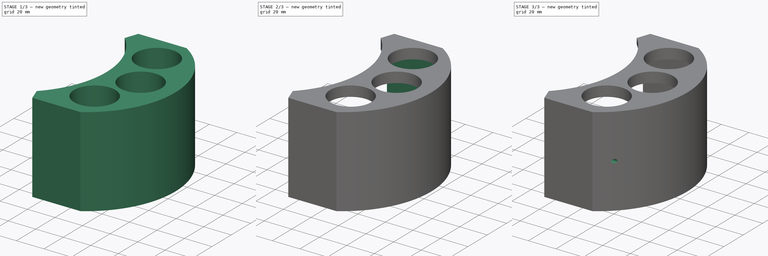
[diagram: build sequence overview — one tinted view per stage of 3, left to right]
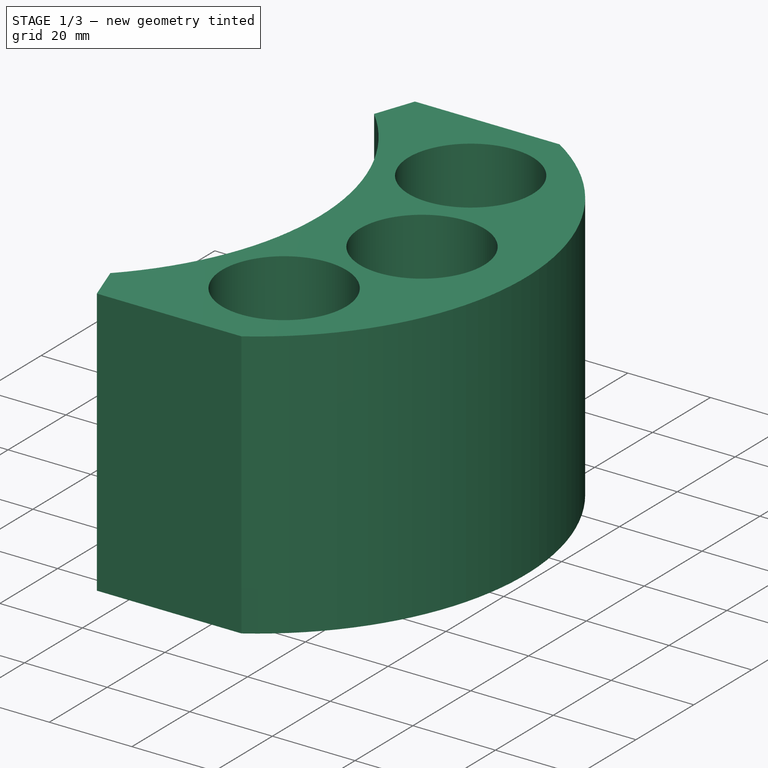
[diagram: stage 1 of 3 — iso view after this stage's code; geometry added in this stage tinted green]
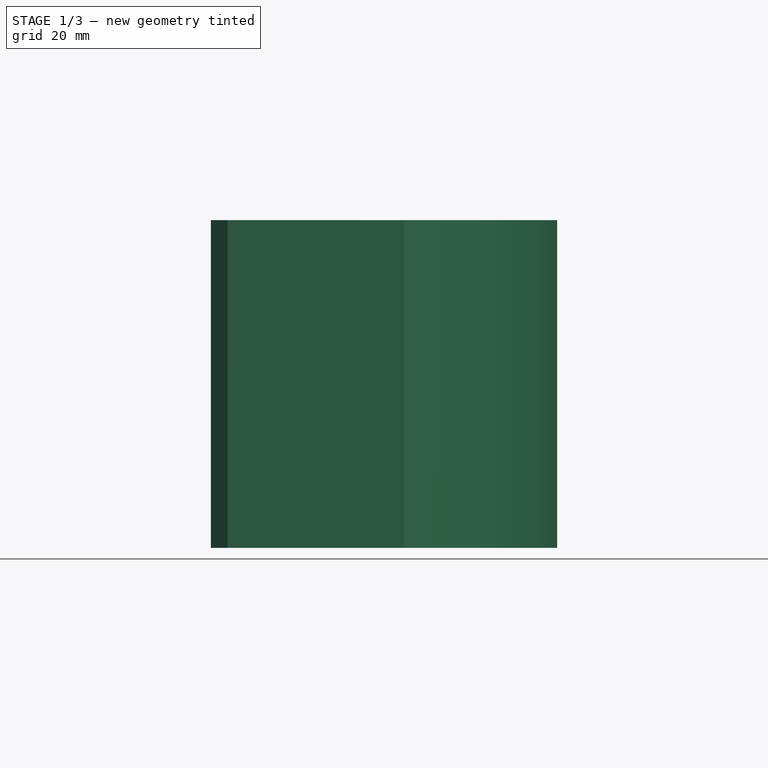
[diagram: stage 1 of 3 — front view after this stage's code; geometry added in this stage tinted green]
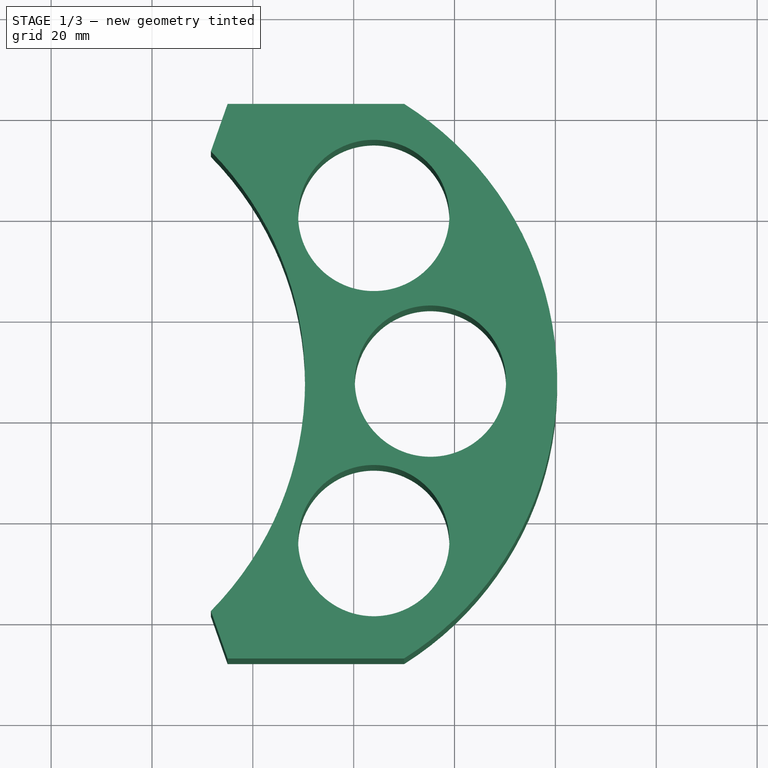
[diagram: stage 1 of 3 — top view after this stage's code; geometry added in this stage tinted green]
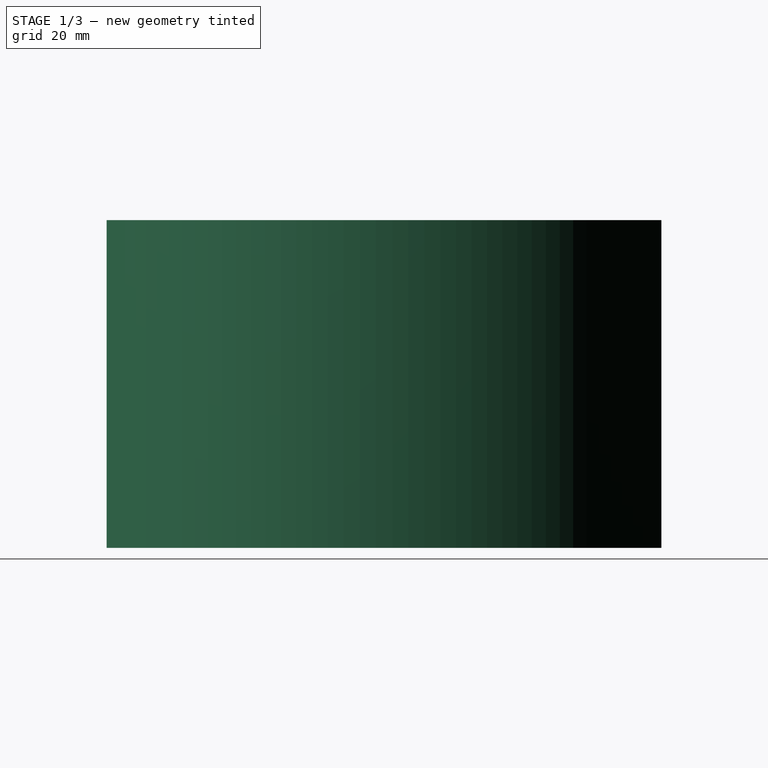
[diagram: stage 1 of 3 — right view after this stage's code; geometry added in this stage tinted green]
FCSTD DOCUMENT  (FreeCAD 0.19R24267 +148 (Git))
Label: Ex12
License: All rights reserved
LicenseURL: http://en.wikipedia.org/wiki/All_rights_reserved
objects: Sketcher::SketchObject×4, PartDesign::Pocket×2, PartDesign::Pad×1, PartDesign::Chamfer×1, PartDesign::Fillet×1, PartDesign::Point×1, PartDesign::Body×1
note: 16 computed .brp shape members not serialized (recipe doc carries the construction recipe); baked Part::Feature solids carry a one-line shape summary decoded from their .brp

FEATURE [Sketcher::SketchObject] Sketch
  FullyConstrained = false
  MapMode = 5
  Support = -> [XY_Plane]
  sketch-geometry (7):
    g0: ArcOfCircle CenterX=-34.641 CenterY=-32.863 CenterZ=0 NormalX=0 NormalY=0 NormalZ=1 AngleXU=0 Radius=65 StartAngle=5.27446 EndAngle=7.29191
    g1: ArcOfCircle CenterX=15.359 CenterY=-32.863 CenterZ=0 NormalX=0 NormalY=0 NormalZ=1 AngleXU=0 Radius=65 StartAngle=5.27446 EndAngle=7.29191
    g2: LineSegment StartX=50 StartY=22.137 StartZ=0 EndX=-2.13e-14 EndY=22.137 EndZ=0
    g3: LineSegment StartX=0 StartY=-87.863 StartZ=0 EndX=50 EndY=-87.863 EndZ=0
    g4: Circle CenterX=55.2191 CenterY=-32.863 CenterZ=0 NormalX=0 NormalY=0 NormalZ=1 AngleXU=0 Radius=15
    g5: Circle CenterX=43.9825 CenterY=0 CenterZ=0 NormalX=0 NormalY=0 NormalZ=1 AngleXU=0 Radius=15
    g6: Circle CenterX=43.9825 CenterY=-64.492 CenterZ=0 NormalX=0 NormalY=0 NormalZ=1 AngleXU=0 Radius=15
  constraints (19):
    c: PointOnObject(g0,g-2)
    c: PointOnObject(g0,g-2)
    c: Horizontal(g1,g0)
    c: Horizontal(g0,g1)
    c: Coincident(g2,g1)
    c: Coincident(g2,g0)
    c: Coincident(g3,g0)
    c: Coincident(g3,g1)
    c: Vertical(g1,g1)
    c: DistanceY(g0,g0) = 110
    c: DistanceX(g0,g1) = 50
    c: Radius(g1) = 65
    c: Radius(g0) = 65
    c: Horizontal(g4,g1)
    c: Diameter(g4) = 30
    c: Equal(g4,g5) = 30
    c: PointOnObject(g5,g-1)
    c: Equal(g4,g6) = 30
    c: Vertical(g5,g6)
FEATURE [PartDesign::Pad] Pad
  Direction = (1,1,1)
  Length = 65
  Length2 = 100
  Midplane = true
  Profile = -> Sketch
  Type = 0
FEATURE [Sketcher::SketchObject] Sketch001
  FullyConstrained = false
  MapMode = 5
  Placement = pos=(0,0,0) rot=(0.57735,0.57735,0.57735;2.0944rad)
  Support = -> [YZ_Plane]
  sketch-geometry (4):
    g0: LineSegment StartX=17.5178 StartY=23.0871 StartZ=0 EndX=-82.4822 EndY=23.0871 EndZ=0
    g1: LineSegment StartX=-82.4822 StartY=23.0871 StartZ=0 EndX=-82.4822 EndY=-26.9129 EndZ=0
    g2: LineSegment StartX=-82.4822 StartY=-26.9129 StartZ=0 EndX=17.5178 EndY=-26.9129 EndZ=0
    g3: LineSegment StartX=17.5178 StartY=-26.9129 StartZ=0 EndX=17.5178 EndY=23.0871 EndZ=0
  constraints (10):
    c: Coincident(g0,g1)
    c: Coincident(g1,g2)
    c: Coincident(g2,g3)
    c: Coincident(g3,g0)
    c: Horizontal(g0)
    c: Horizontal(g2)
    c: Vertical(g1)
    c: Vertical(g3)
    c: DistanceY(g1,g1) = 50
    c: DistanceX(g0,g0) = 100
FEATURE [Sketcher::SketchObject] Sketch002
  FullyConstrained = false
  MapMode = 5
  Support = -> [XY_Plane]
  sketch-geometry (4):
    g0: ArcOfCircle CenterX=12.3243 CenterY=-32.9632 CenterZ=0 NormalX=0 NormalY=0 NormalZ=1 AngleXU=0 Radius=63.6185 StartAngle=5.37898 EndAngle=7.18739
    g1: LineSegment StartX=51.6602 StartY=17.0368 StartZ=0 EndX=0 EndY=17.0368 EndZ=0
    g2: LineSegment StartX=51.6602 StartY=-82.9632 StartZ=0 EndX=0 EndY=-82.9632 EndZ=0
    g3: LineSegment StartX=0 StartY=17.0368 StartZ=0 EndX=0 EndY=-82.9632 EndZ=0
  constraints (10):
    c: Coincident(g1,g0)
    c: PointOnObject(g1,g-2)
    c: Horizontal(g1)
    c: Coincident(g2,g0)
    c: PointOnObject(g2,g-2)
    c: Horizontal(g2)
    c: Coincident(g3,g1)
    c: Coincident(g3,g2)
    c: DistanceY(g3,g3) = 100
    c: Vertical(g0,g0)
FEATURE [Sketcher::SketchObject] Sketch003
  FullyConstrained = false
  MapMode = 5
  Placement = pos=(0,0,0) rot=(0.57735,0.57735,0.57735;2.0944rad)
  Support = -> [YZ_Plane]
  sketch-geometry (2):
    g0: Circle CenterX=-79.8652 CenterY=0 CenterZ=0 NormalX=0 NormalY=0 NormalZ=1 AngleXU=0 Radius=1.34467
    g1: Circle CenterX=13.5801 CenterY=-0.015654 CenterZ=0 NormalX=0 NormalY=0 NormalZ=1 AngleXU=0 Radius=1.34467
FEATURE [PartDesign::Chamfer] Chamfer
  Angle = 45
  Base = -> Pad [Edge1,Edge2]
  BaseFeature = -> Pad
  ChamferType = 0
  FlipDirection = false
  Size = 15
  Size2 = 1
  SupportTransform = false
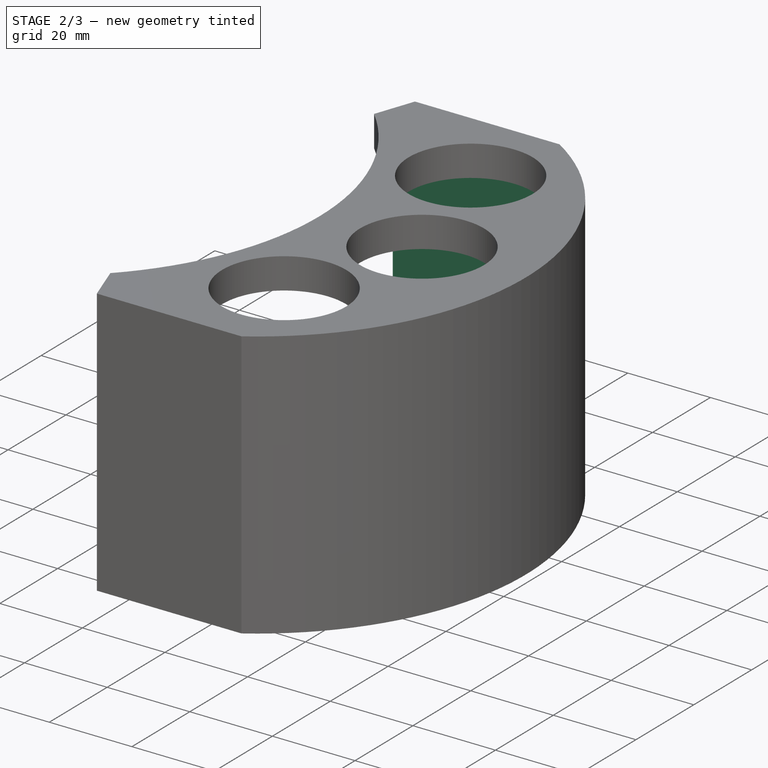
[diagram: stage 2 of 3 — iso view after this stage's code; geometry added in this stage tinted green]
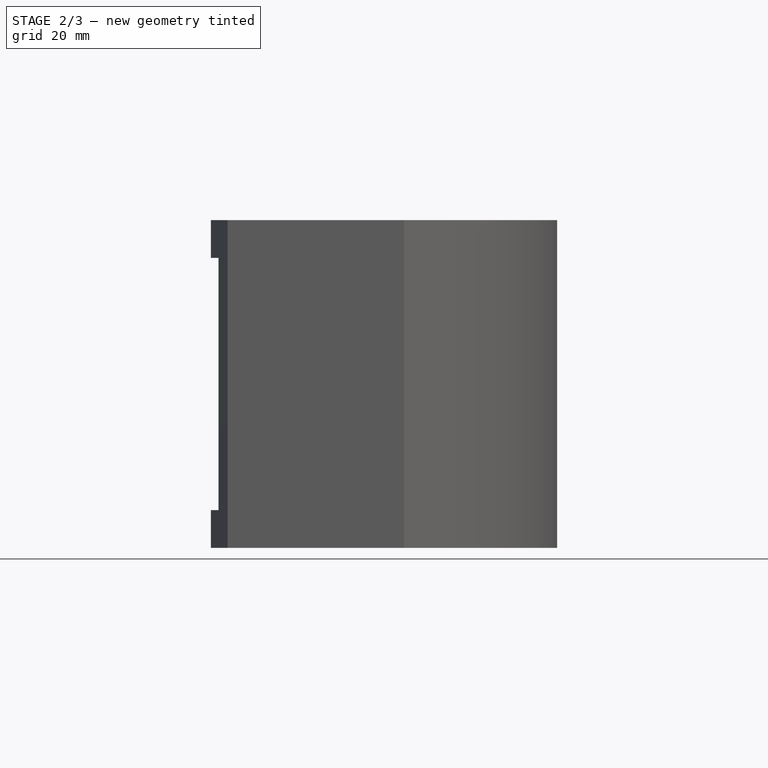
[diagram: stage 2 of 3 — front view after this stage's code; geometry added in this stage tinted green]
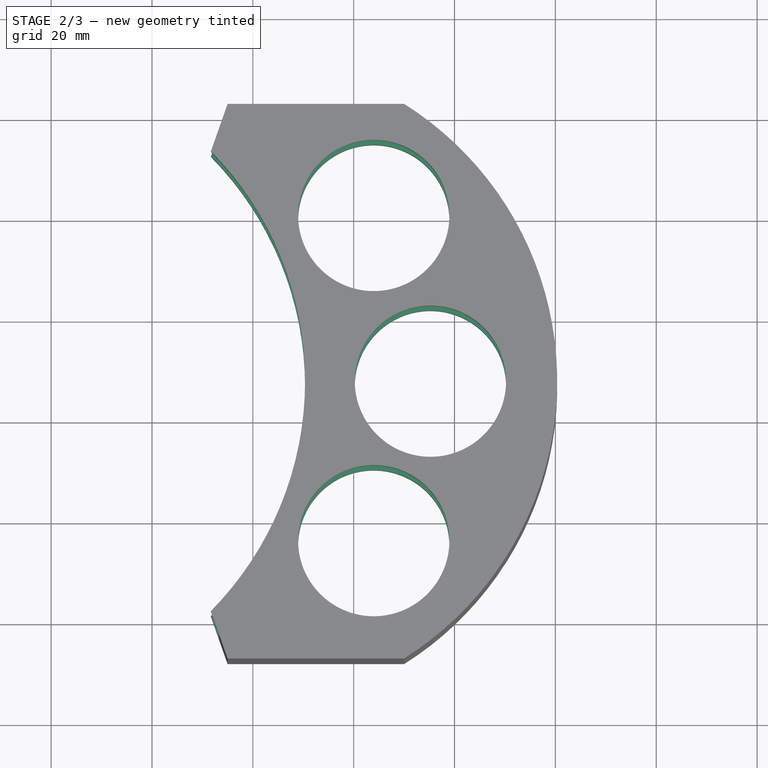
[diagram: stage 2 of 3 — top view after this stage's code; geometry added in this stage tinted green]
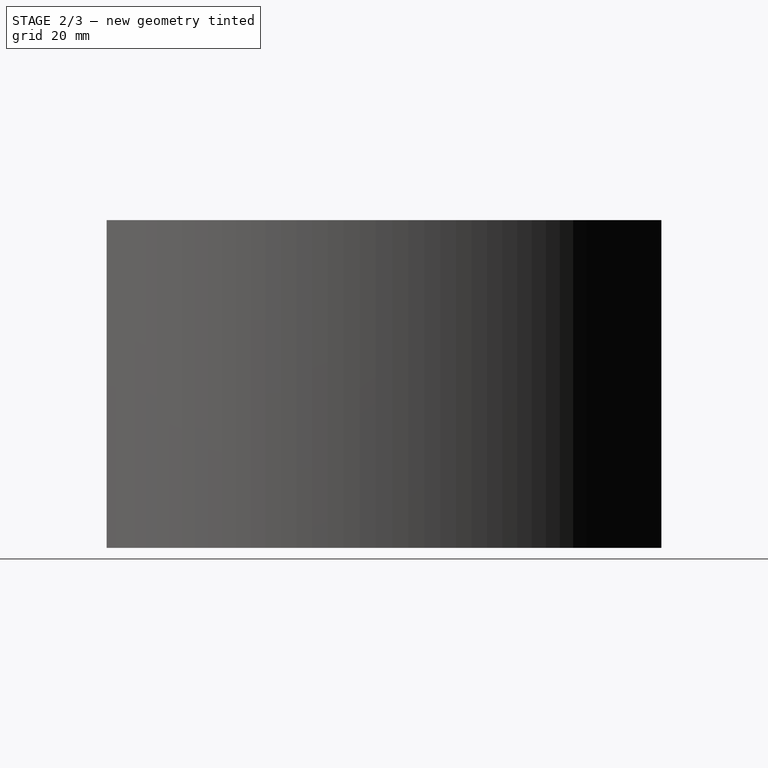
[diagram: stage 2 of 3 — right view after this stage's code; geometry added in this stage tinted green]
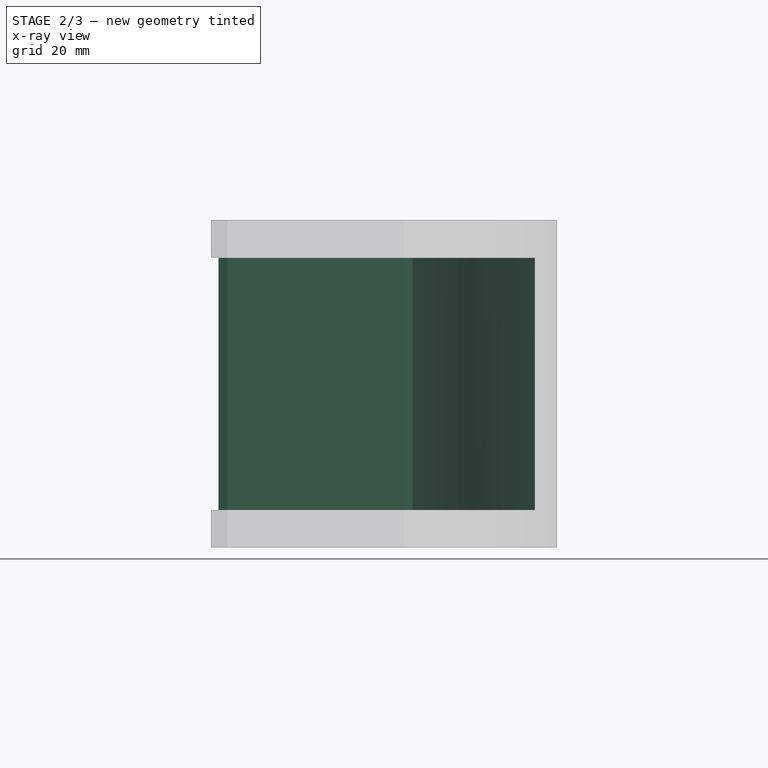
[diagram: stage 2 of 3 — x-ray composite at the front view; earlier geometry ghosted, this stage's added geometry solid]
FEATURE [PartDesign::Pocket] Pocket
  BaseFeature = -> Chamfer
  Length = 50
  Length2 = 100
  Midplane = true
  Profile = -> Sketch002
  Type = 0
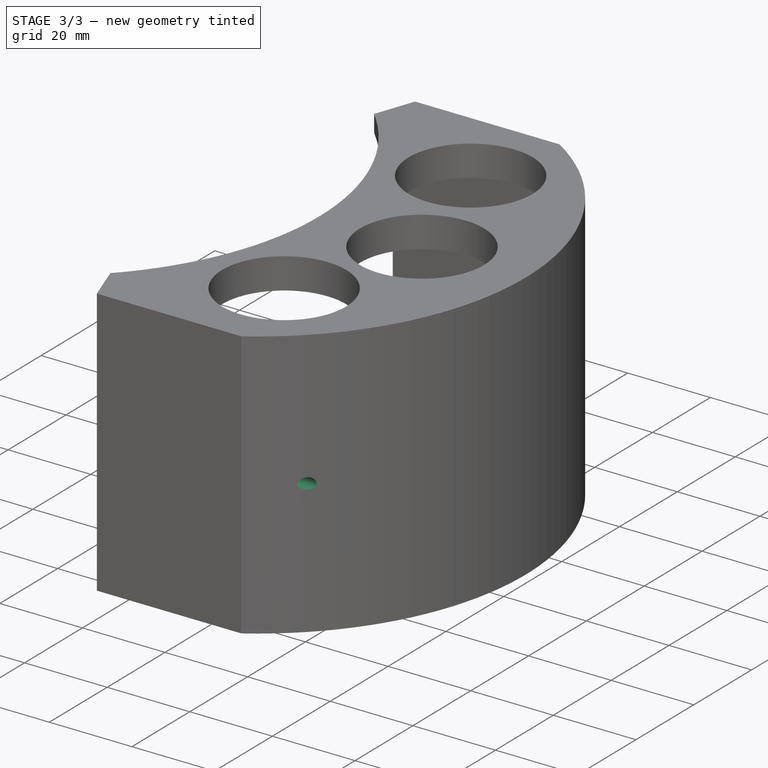
[diagram: stage 3 of 3 — iso view after this stage's code; geometry added in this stage tinted green]
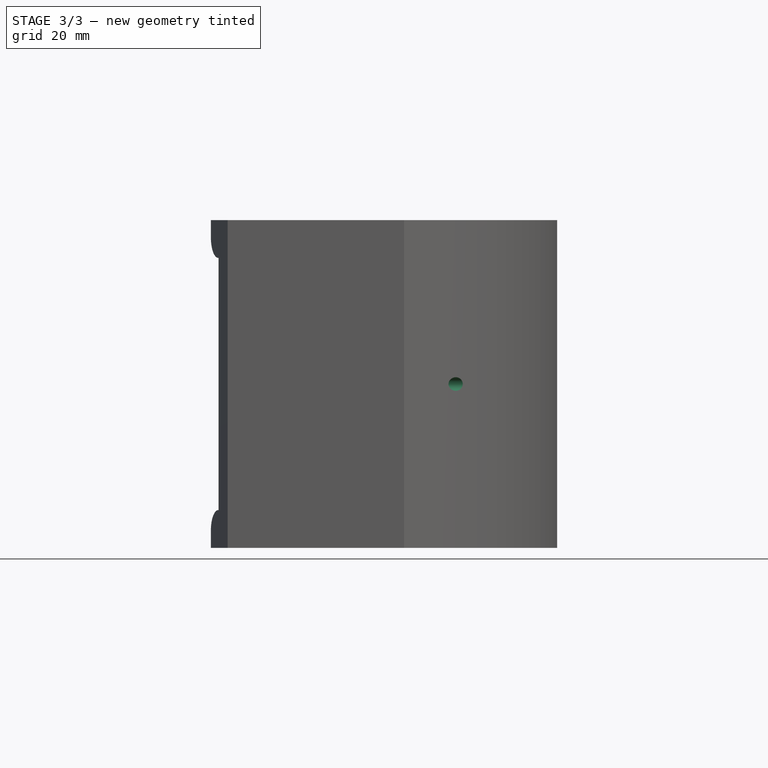
[diagram: stage 3 of 3 — front view after this stage's code; geometry added in this stage tinted green]
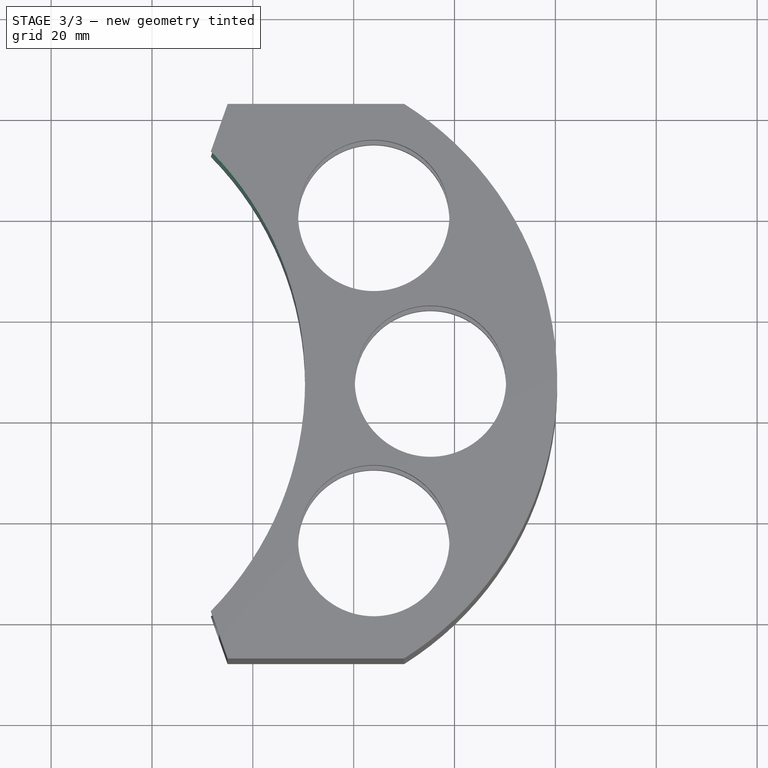
[diagram: stage 3 of 3 — top view after this stage's code; geometry added in this stage tinted green]
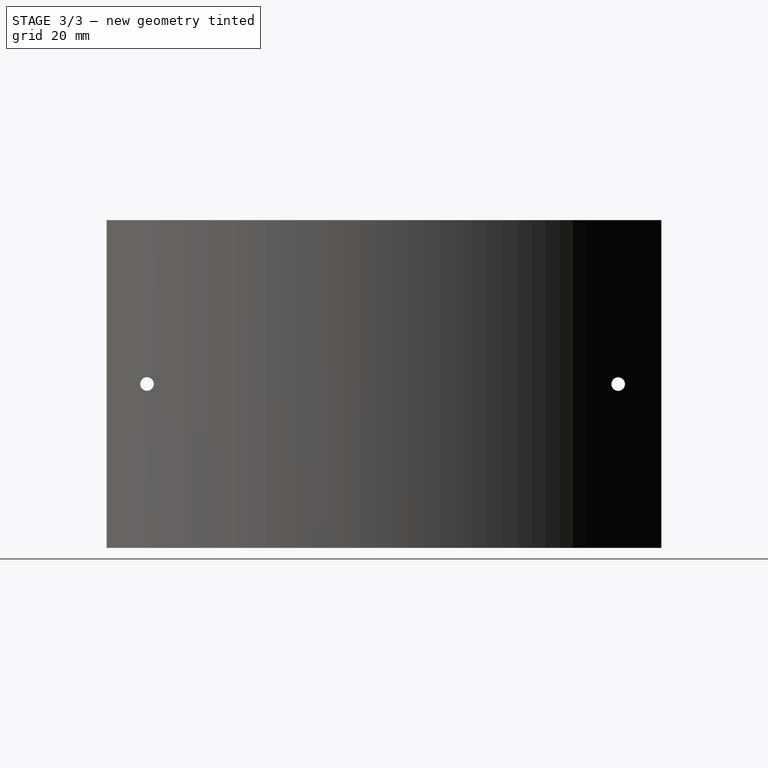
[diagram: stage 3 of 3 — right view after this stage's code; geometry added in this stage tinted green]
FEATURE [PartDesign::Fillet] Fillet
  Base = -> Pocket [Edge42,Edge3]
  BaseFeature = -> Pocket
  Radius = 4
  SupportTransform = false
FEATURE [PartDesign::Point] DatumPoint
  AttacherType = Attacher::AttachEnginePoint
  MapMode = 37
  Placement = pos=(65.0002,-32.8062,7.73277e-09) rot=(0,0,1;0rad)
  Support = -> [Fillet]
FEATURE [PartDesign::Pocket] Pocket001
  BaseFeature = -> Fillet
  Length = 5
  Length2 = 100
  Midplane = true
  Profile = -> Sketch003
  Reversed = true
  Type = 1
FEATURE [PartDesign::Body] Body
  Group = -> [Sketch,Pad,Chamfer,Sketch001,Sketch002,Pocket,Fillet,DatumPoint,Sketch003,Pocket001]
  Origin = -> Origin
  Tip = -> Pocket001
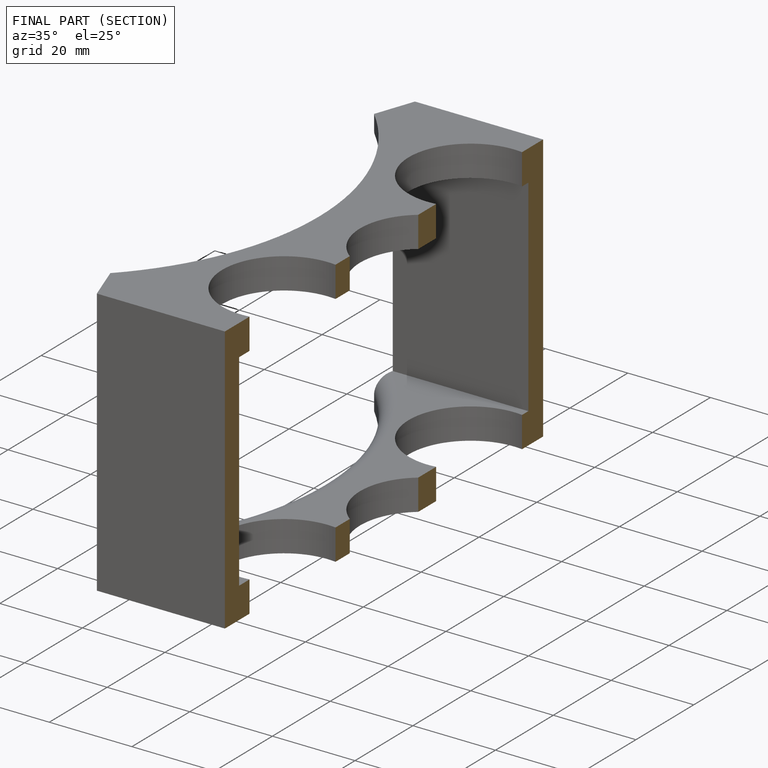
[diagram: finished part — half-section view (interior)]
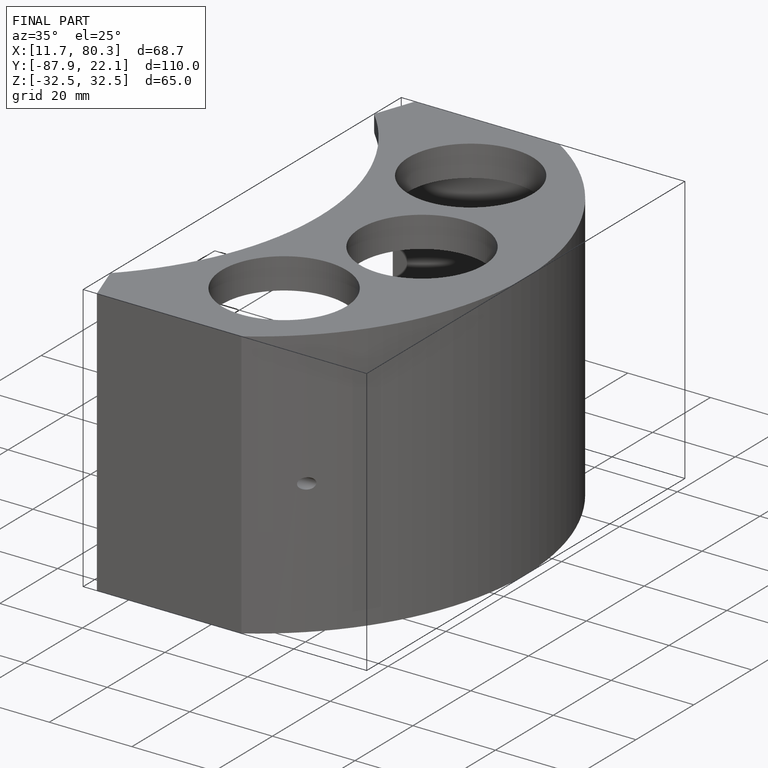
[diagram: finished part — iso view with bounding-box wireframe]
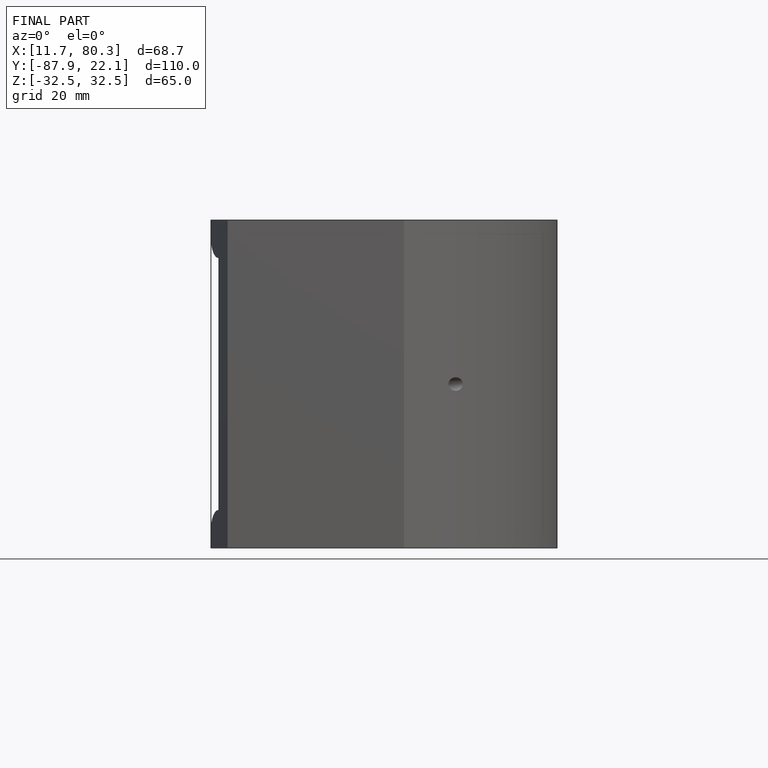
[diagram: finished part — front view with bounding-box wireframe]
